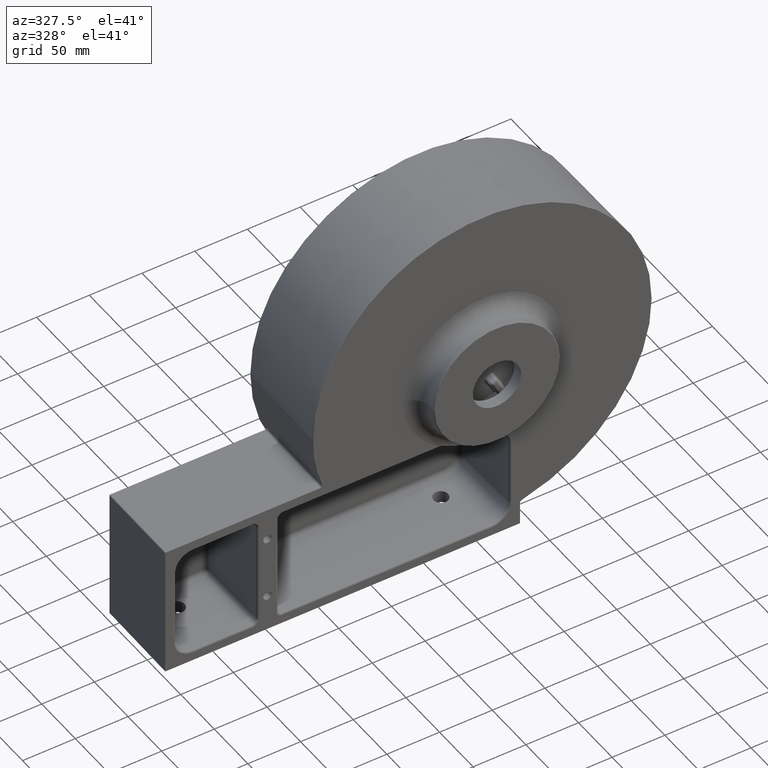
[diagram: clean part render]
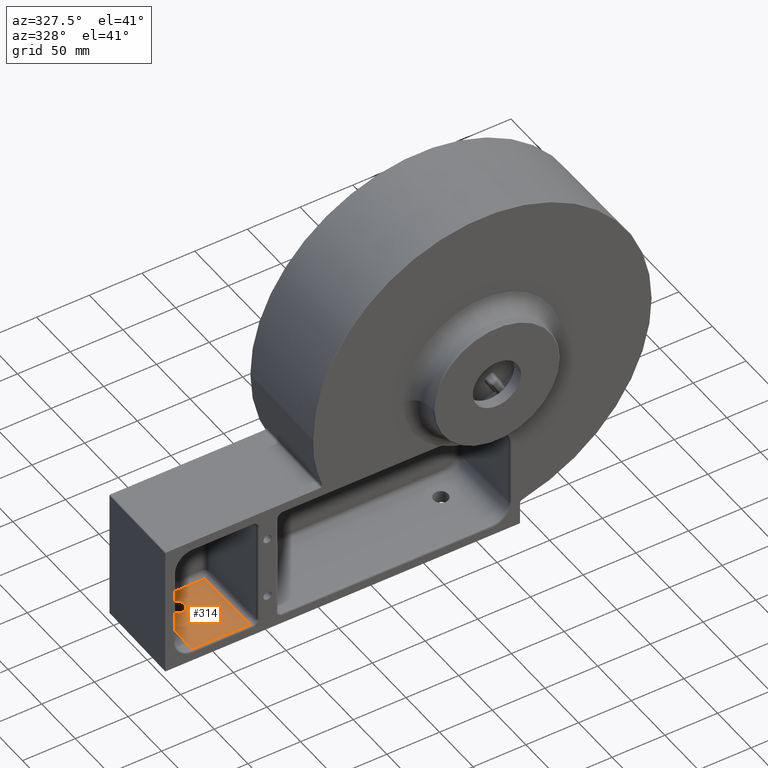
[diagram: same view with one face highlighted and labeled with its STEP entity id]
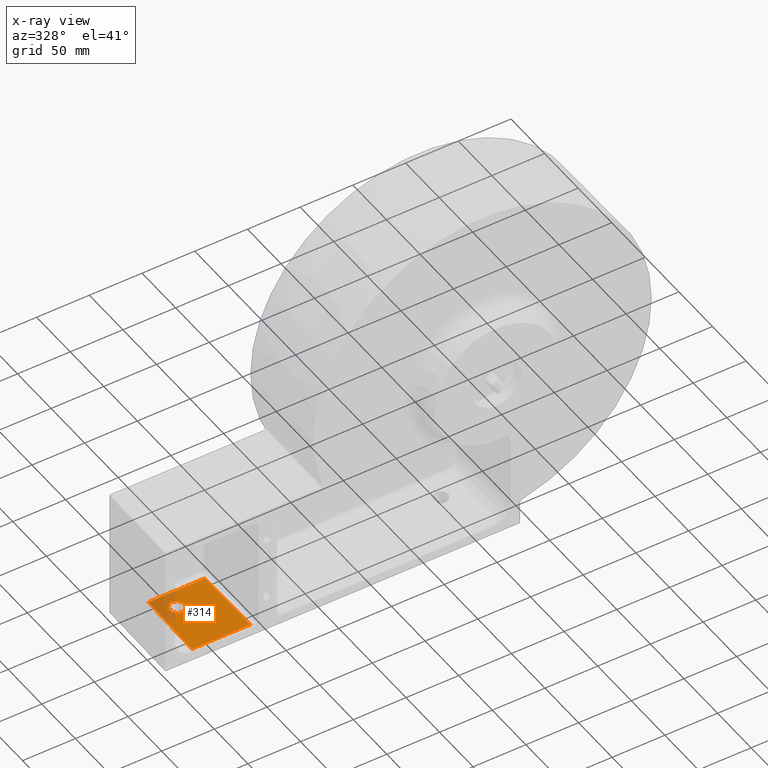
[diagram: x-ray of the same camera — body ghosted, the highlighted face saturated]
A machine part, auxiliary view. The second image highlights one B-rep face of the part: STEP entity #314.
The next image is the same camera in x-ray: the body ghosted, the highlighted face saturated — about 12% of this face is hidden behind the body in this view.
In plain terms, the highlighted planar face has unit normal (-0, 0.0262, -0.9997).
Its self-contained STEP definition (entity closure, byte-faithful):
#165 = LINE ( 'NONE', #3153, #2614 ) ;
#314 = ADVANCED_FACE ( 'NONE', ( #4885, #7862 ), #1195, .F. ) ;
#377 = VERTEX_POINT ( 'NONE', #2757 ) ;
#465 = DIRECTION ( 'NONE',  ( 0.0000000000000000000, 0.9996573249755572599, 0.02617694830787320806 ) ) ;
#610 = CARTESIAN_POINT ( 'NONE',  ( 9.241783762214511810, 88.93027571429203704, -168.2421159172879186 ) ) ;
#1044 = VERTEX_POINT ( 'NONE', #5596 ) ;
#1164 = DIRECTION ( 'NONE',  ( -1.293633213678236133E-16, -0.9996573249755572599, -0.02617694830787321153 ) ) ;
#1195 = PLANE ( 'NONE',  #7361 ) ;
#1203 = VERTEX_POINT ( 'NONE', #7495 ) ;
#1668 = CARTESIAN_POINT ( 'NONE',  ( -264.5000000000000000, 57.79939097275273241, -169.0573068235092364 ) ) ;
#1839 = CARTESIAN_POINT ( 'NONE',  ( -250.5000000000000000, 71.79939097275270399, -168.6907039215406314 ) ) ;
#2569 = CARTESIAN_POINT ( 'NONE',  ( -264.5000000000000000, 71.79939097275270399, -168.6907039215406314 ) ) ;
#2614 = VECTOR ( 'NONE', #6119, 1000.000000000000227 ) ;
#2757 = CARTESIAN_POINT ( 'NONE',  ( -220.4979544698043981, 88.93027571429206546, -168.2421159172878617 ) ) ;
#2804 = EDGE_LOOP ( 'NONE', ( #9434, #6061 ) ) ;
#2909 = DIRECTION ( 'NONE',  ( -1.000000000000000000, 1.242786967863980845E-16, 1.958674375096039709E-16 ) ) ;
#3153 = CARTESIAN_POINT ( 'NONE',  ( -218.5839567573944748, 15.83765197932741131, -170.1561136296977281 ) ) ;
#3278 = ORIENTED_EDGE ( 'NONE', *, *, #3461, .F. ) ;
#3461 = EDGE_CURVE ( 'NONE', #1203, #377, #7283, .T. ) ;
#3538 = ORIENTED_EDGE ( 'NONE', *, *, #7045, .F. ) ;
#3578 = DIRECTION ( 'NONE',  ( 1.000000000000000000, -1.242786967863980845E-16, -1.958674375096039709E-16 ) ) ;
#4162 = CARTESIAN_POINT ( 'NONE',  ( 9.241783762214499376, 21.79939097275266136, -169.9999999999999716 ) ) ;
#4310 = VERTEX_POINT ( 'NONE', #6121 ) ;
#4463 = ORIENTED_EDGE ( 'NONE', *, *, #5745, .T. ) ;
#4625 = CARTESIAN_POINT ( 'NONE',  ( -264.5000000000000000, 71.79939097275270399, -168.6907039215406314 ) ) ;
#4800 = CARTESIAN_POINT ( 'NONE',  ( -250.5000000000000000, 71.79939097275270399, -168.6907039215406314 ) ) ;
#4831 = VECTOR ( 'NONE', #3578, 1000.000000000000000 ) ;
#4839 = EDGE_CURVE ( 'NONE', #4310, #4842, #7932, .T. ) ;
#4842 = VERTEX_POINT ( 'NONE', #4800 ) ;
#4853 = LINE ( 'NONE', #7834, #6948 ) ;
#4885 = FACE_BOUND ( 'NONE', #2804, .T. ) ;
#5350 = CARTESIAN_POINT ( 'NONE',  ( -250.5000000000000000, 71.79939097275270399, -168.6907039215406314 ) ) ;
#5530 = CARTESIAN_POINT ( 'NONE',  ( -264.5000000000000000, 85.79939097275267557, -168.3241010195720264 ) ) ;
#5596 = CARTESIAN_POINT ( 'NONE',  ( -218.7910712952000551, 23.74703707613694093, -169.9489990918921762 ) ) ;
#5745 = EDGE_CURVE ( 'NONE', #1203, #7708, #4853, .T. ) ;
#6061 = ORIENTED_EDGE ( 'NONE', *, *, #4839, .T. ) ;
#6119 = DIRECTION ( 'NONE',  ( 0.02616798426497925906, -0.9993150019883697555, -0.02616798426497939437 ) ) ;
#6121 = CARTESIAN_POINT ( 'NONE',  ( -264.5000000000000000, 71.79939097275270399, -168.6907039215406314 ) ) ;
#6611 = LINE ( 'NONE', #9582, #7447 ) ;
#6948 = VECTOR ( 'NONE', #1164, 1000.000000000000114 ) ;
#7045 = EDGE_CURVE ( 'NONE', #377, #1044, #165, .T. ) ;
#7054 = ORIENTED_EDGE ( 'NONE', *, *, #7342, .F. ) ;
#7139 = DIRECTION ( 'NONE',  ( -1.925470816091204724E-16, 0.02617694830787321153, -0.9996573249755573709 ) ) ;
#7283 = LINE ( 'NONE', #610, #4831 ) ;
#7342 = EDGE_CURVE ( 'NONE', #1044, #7708, #6611, .T. ) ;
#7361 = AXIS2_PLACEMENT_3D ( 'NONE', #4162, #7139, #465 ) ;
#7447 = VECTOR ( 'NONE', #2909, 1000.000000000000000 ) ;
#7495 = CARTESIAN_POINT ( 'NONE',  ( -274.2417837622145953, 88.93027571429206546, -168.2421159172878617 ) ) ;
#7670 = EDGE_LOOP ( 'NONE', ( #3278, #4463, #7054, #3538 ) ) ;
#7708 = VERTEX_POINT ( 'NONE', #7737 ) ;
#7737 = CARTESIAN_POINT ( 'NONE',  ( -274.2417837622145953, 23.74703707613694803, -169.9489990918921762 ) ) ;
#7834 = CARTESIAN_POINT ( 'NONE',  ( -274.2417837622145953, 21.79939097275269688, -169.9999999999999432 ) ) ;
#7862 = FACE_OUTER_BOUND ( 'NONE', #7670, .T. ) ;
#7932 =( BOUNDED_CURVE ( )  B_SPLINE_CURVE ( 3, ( #2569, #5530, #8505, #1839 ),
 .UNSPECIFIED., .F., .F. ) 
 B_SPLINE_CURVE_WITH_KNOTS ( ( 4, 4 ),
 ( 1.570796326794903885, 4.712388980384696779 ),
 .UNSPECIFIED. ) 
 CURVE ( )  GEOMETRIC_REPRESENTATION_ITEM ( )  RATIONAL_B_SPLINE_CURVE ( ( 1.000000000000000000, 0.3333333333333333703, 0.3333333333333333703, 1.000000000000000000 ) ) 
 REPRESENTATION_ITEM ( '' )  );
#8331 = CARTESIAN_POINT ( 'NONE',  ( -250.5000000000000284, 57.79939097275273241, -169.0573068235092364 ) ) ;
#8505 = CARTESIAN_POINT ( 'NONE',  ( -250.5000000000000284, 85.79939097275267557, -168.3241010195720264 ) ) ;
#9324 =( BOUNDED_CURVE ( )  B_SPLINE_CURVE ( 3, ( #5350, #8331, #1668, #4625 ),
 .UNSPECIFIED., .F., .F. ) 
 B_SPLINE_CURVE_WITH_KNOTS ( ( 4, 4 ),
 ( 4.712388980384696779, 7.853981633974489895 ),
 .UNSPECIFIED. ) 
 CURVE ( )  GEOMETRIC_REPRESENTATION_ITEM ( )  RATIONAL_B_SPLINE_CURVE ( ( 1.000000000000000000, 0.3333333333333333703, 0.3333333333333333703, 1.000000000000000000 ) ) 
 REPRESENTATION_ITEM ( '' )  );
#9434 = ORIENTED_EDGE ( 'NONE', *, *, #9544, .T. ) ;
#9544 = EDGE_CURVE ( 'NONE', #4842, #4310, #9324, .T. ) ;
#9582 = CARTESIAN_POINT ( 'NONE',  ( 9.241783762214499376, 23.74703707613691606, -169.9489990918922331 ) ) ;